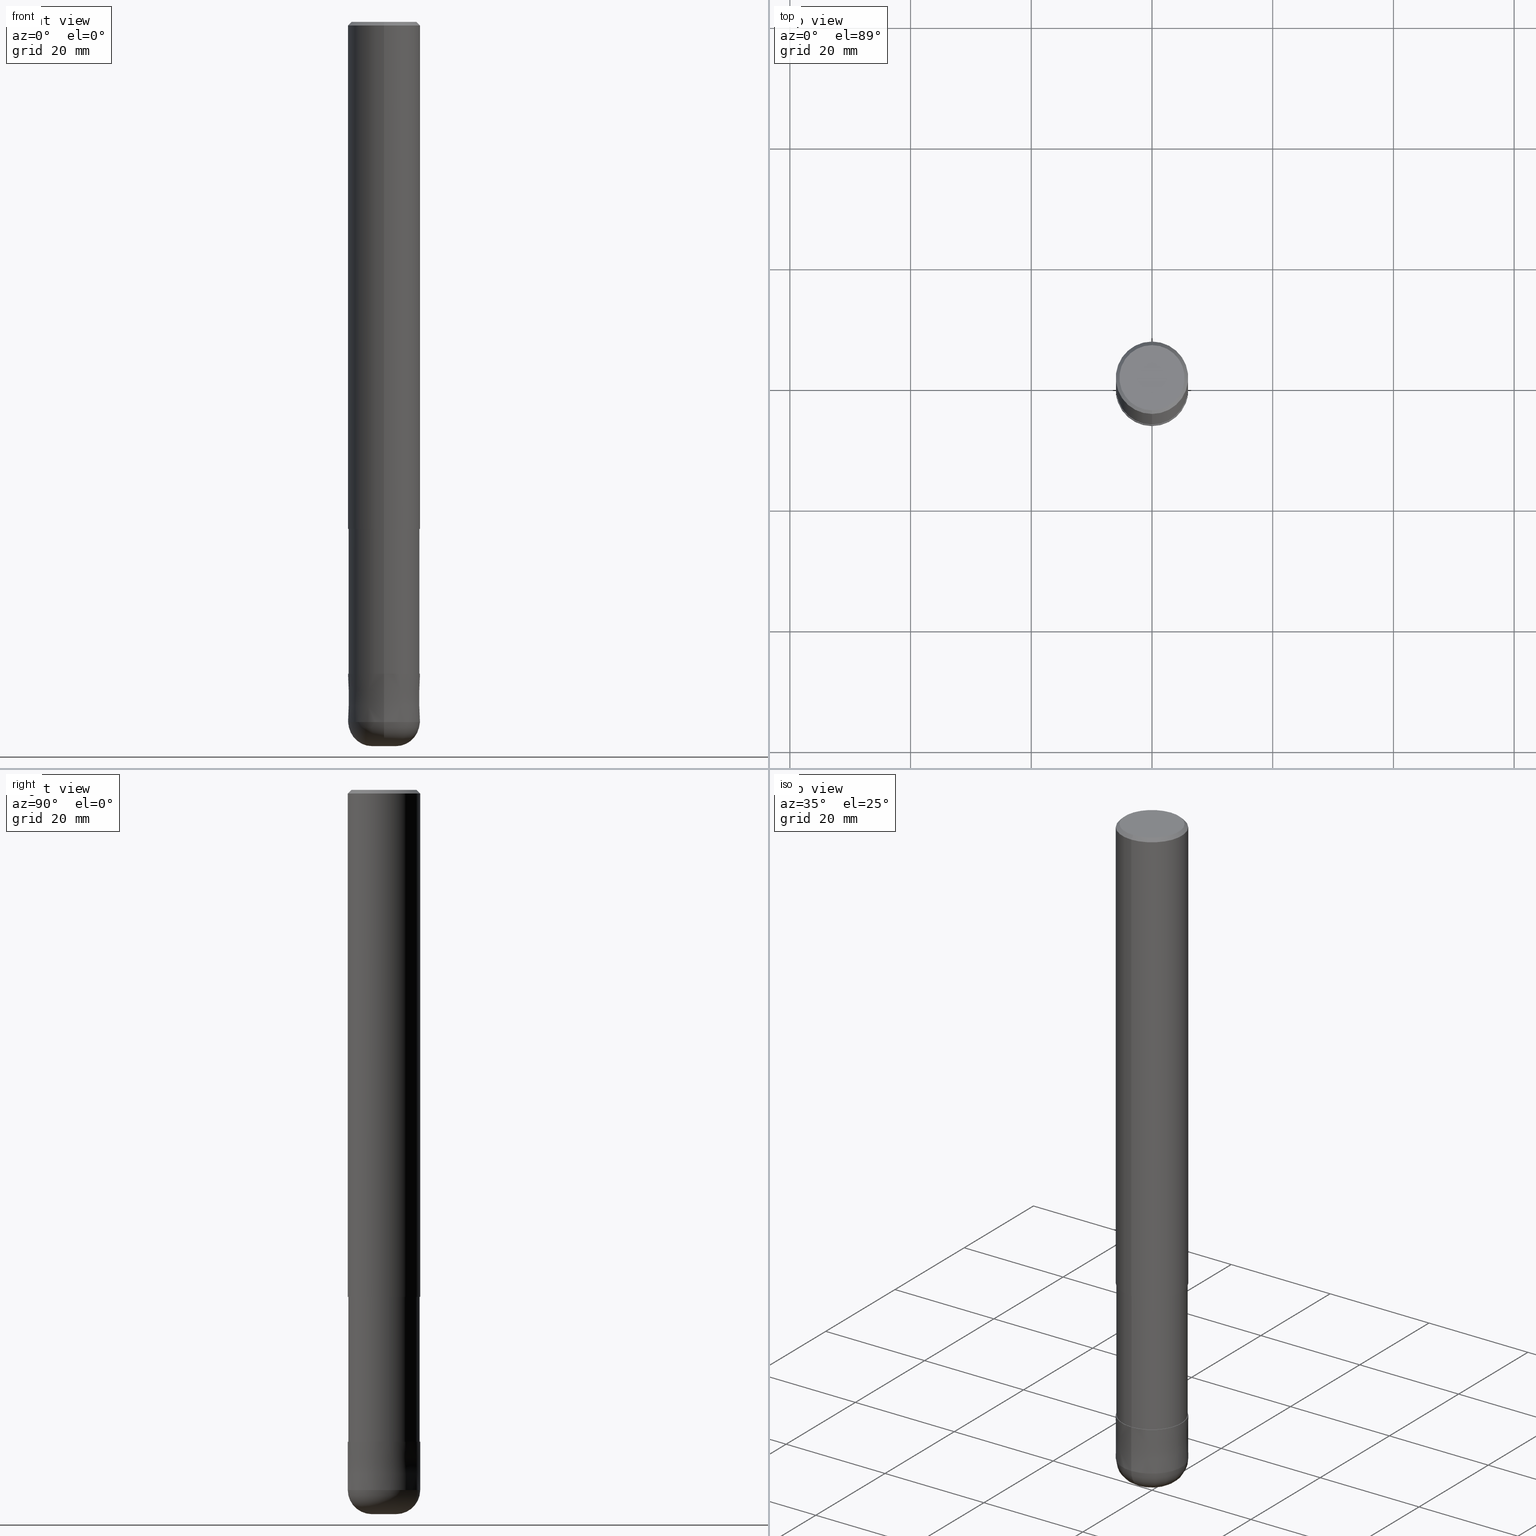
[diagram: canonical four-view strip — front | top / right | iso, engineering-drawing reading convention]
A machine part, canonical four-view strip (front | top / right | iso — engineering-drawing reading convention). The complete STEP part file that produces these views, byte-faithful:
ISO-10303-21;
HEADER;
FILE_DESCRIPTION(('no description'),'unknown implementation level');
FILE_NAME('HRRS4120-40-36-Huellk.stp','  ',('CIMSOURCE GmbH'),('CADClick - KiM GmbH - www.kimweb.de'),'unknown preprocess','ACIS','unknown authorization');
FILE_SCHEMA(('automotive_design'));
ENDSEC;
DATA;
#1=MECHANICAL_DESIGN_GEOMETRIC_PRESENTATION_REPRESENTATION(' ',(#14,#15,#16,#17,#18,#19,#20,#21,#22,#23,#24,#25,#26,#27,#28,#29,#30,#31,#32,#33,#34,#35,#36,#37,#38,#39,#40,#41,#42,#43,#44,#45,#46,#47,#48,#49,#50,#51,#52,#53,#54,#55,#56,#57,#58,#59,#60,#61,#62,#63,#64,#65,#66,#67,#68,#69,#70,#71,#72),#10);
#2=PRODUCT_DEFINITION_CONTEXT('',#73,'design');
#3=APPLICATION_PROTOCOL_DEFINITION('INTERNATIONAL STANDARD','automotive_design',1994,#73);
#4=PRODUCT_CATEGORY_RELATIONSHIP('NONE','NONE',#74,#75);
#5=SHAPE_DEFINITION_REPRESENTATION(#76,#77);
#6=PRODUCT_DEFINITION_CONTEXT('',#78,'design');
#7=APPLICATION_PROTOCOL_DEFINITION('INTERNATIONAL STANDARD','automotive_design',1994,#78);
#8=PRODUCT_CATEGORY_RELATIONSHIP('NONE','NONE',#79,#80);
#9=SHAPE_DEFINITION_REPRESENTATION(#81,#82);
#10= (GEOMETRIC_REPRESENTATION_CONTEXT(3)GLOBAL_UNCERTAINTY_ASSIGNED_CONTEXT((#85))GLOBAL_UNIT_ASSIGNED_CONTEXT((#87,#88,#89))REPRESENTATION_CONTEXT('NONE','WORKSPACE'));
#14=STYLED_ITEM('',(#91),#92);
#15=STYLED_ITEM('',(#93),#94);
#16=STYLED_ITEM('',(#95),#96);
#17=STYLED_ITEM('',(#97),#98);
#18=STYLED_ITEM('',(#99),#100);
#19=STYLED_ITEM('',(#101),#102);
#20=STYLED_ITEM('',(#103),#104);
#21=STYLED_ITEM('',(#105),#106);
#22=STYLED_ITEM('',(#107),#108);
#23=STYLED_ITEM('',(#109),#110);
#24=STYLED_ITEM('',(#111),#112);
#25=STYLED_ITEM('',(#113),#114);
#26=STYLED_ITEM('',(#115),#116);
#27=STYLED_ITEM('',(#117),#118);
#28=STYLED_ITEM('',(#119),#120);
#29=STYLED_ITEM('',(#121),#122);
#30=STYLED_ITEM('',(#123),#124);
#31=STYLED_ITEM('',(#125),#126);
#32=STYLED_ITEM('',(#127),#128);
#33=STYLED_ITEM('',(#129),#130);
#34=STYLED_ITEM('',(#131),#132);
#35=STYLED_ITEM('',(#133),#134);
#36=STYLED_ITEM('',(#135),#136);
#37=STYLED_ITEM('',(#137),#138);
#38=STYLED_ITEM('',(#139),#140);
#39=STYLED_ITEM('',(#141),#142);
#40=STYLED_ITEM('',(#143),#144);
#41=STYLED_ITEM('',(#145),#146);
#42=STYLED_ITEM('',(#147),#148);
#43=STYLED_ITEM('',(#149),#150);
#44=STYLED_ITEM('',(#151),#152);
#45=STYLED_ITEM('',(#153),#154);
#46=STYLED_ITEM('',(#155),#156);
#47=STYLED_ITEM('',(#157),#158);
#48=STYLED_ITEM('',(#159),#160);
#49=STYLED_ITEM('',(#161),#162);
#50=STYLED_ITEM('',(#163),#164);
#51=STYLED_ITEM('',(#165),#166);
#52=STYLED_ITEM('',(#167),#168);
#53=STYLED_ITEM('',(#169),#170);
#54=STYLED_ITEM('',(#171),#172);
#55=STYLED_ITEM('',(#173),#174);
#56=STYLED_ITEM('',(#175),#176);
#57=STYLED_ITEM('',(#177),#178);
#58=STYLED_ITEM('',(#179),#180);
#59=STYLED_ITEM('',(#181),#182);
#60=STYLED_ITEM('',(#183),#184);
#61=STYLED_ITEM('',(#185),#186);
#62=STYLED_ITEM('',(#187),#188);
#63=STYLED_ITEM('',(#189),#190);
#64=STYLED_ITEM('',(#191),#192);
#65=STYLED_ITEM('',(#193),#194);
#66=STYLED_ITEM('',(#195),#196);
#67=STYLED_ITEM('',(#197),#198);
#68=STYLED_ITEM('',(#199),#200);
#69=STYLED_ITEM('',(#201),#202);
#70=STYLED_ITEM('',(#203),#204);
#71=STYLED_ITEM('',(#205),#206);
#72=STYLED_ITEM('',(#207),#208);
#73=APPLICATION_CONTEXT(' ');
#74=PRODUCT_CATEGORY('part','NONE');
#75=PRODUCT_RELATED_PRODUCT_CATEGORY('detail',' ',(#209));
#76=PRODUCT_DEFINITION_SHAPE('NONE','NONE',#210);
#77=ADVANCED_BREP_SHAPE_REPRESENTATION('1',(#152,#211),#10);
#78=APPLICATION_CONTEXT(' ');
#79=PRODUCT_CATEGORY('part','NONE');
#80=PRODUCT_RELATED_PRODUCT_CATEGORY('detail',' ',(#212));
#81=PRODUCT_DEFINITION_SHAPE('NONE','NONE',#213);
#82=ADVANCED_BREP_SHAPE_REPRESENTATION('2',(#96,#214),#10);
#85=UNCERTAINTY_MEASURE_WITH_UNIT(LENGTH_MEASURE(1.0E-006),#87,'','');
#87= (CONVERSION_BASED_UNIT('MILLIMETRE',#217)LENGTH_UNIT()NAMED_UNIT(#220));
#88= (NAMED_UNIT(#222)PLANE_ANGLE_UNIT()SI_UNIT($,.RADIAN.));
#89= (NAMED_UNIT(#222)SOLID_ANGLE_UNIT()SI_UNIT($,.STERADIAN.));
#91=PRESENTATION_STYLE_ASSIGNMENT((#228));
#92=ADVANCED_FACE('',(#229),#230,.T.);
#93=PRESENTATION_STYLE_ASSIGNMENT((#231));
#94=EDGE_CURVE('',#144,#208,#232,.T.);
#95=PRESENTATION_STYLE_ASSIGNMENT((#233));
#96=MANIFOLD_SOLID_BREP('2',#234);
#97=PRESENTATION_STYLE_ASSIGNMENT((#235));
#98=EDGE_CURVE('',#184,#160,#236,.T.);
#99=PRESENTATION_STYLE_ASSIGNMENT((#237));
#100=VERTEX_POINT('',#238);
#101=PRESENTATION_STYLE_ASSIGNMENT((#239));
#102=VERTEX_POINT('',#240);
#103=PRESENTATION_STYLE_ASSIGNMENT((#241));
#104=ADVANCED_FACE('',(#242),#243,.T.);
#105=PRESENTATION_STYLE_ASSIGNMENT((#244));
#106=EDGE_CURVE('',#156,#108,#245,.T.);
#107=PRESENTATION_STYLE_ASSIGNMENT((#246));
#108=VERTEX_POINT('',#247);
#109=PRESENTATION_STYLE_ASSIGNMENT((#248));
#110=EDGE_CURVE('',#108,#118,#249,.T.);
#111=PRESENTATION_STYLE_ASSIGNMENT((#250));
#112=EDGE_CURVE('',#118,#134,#251,.T.);
#113=PRESENTATION_STYLE_ASSIGNMENT((#252));
#114=VERTEX_POINT('',#253);
#115=PRESENTATION_STYLE_ASSIGNMENT((#254));
#116=EDGE_CURVE('',#206,#174,#255,.T.);
#117=PRESENTATION_STYLE_ASSIGNMENT((#256));
#118=VERTEX_POINT('',#257);
#119=PRESENTATION_STYLE_ASSIGNMENT((#258));
#120=EDGE_CURVE('',#108,#156,#259,.T.);
#121=PRESENTATION_STYLE_ASSIGNMENT((#260));
#122=ADVANCED_FACE('',(#261),#262,.T.);
#123=PRESENTATION_STYLE_ASSIGNMENT((#263));
#124=EDGE_CURVE('',#100,#178,#264,.T.);
#125=PRESENTATION_STYLE_ASSIGNMENT((#265));
#126=EDGE_CURVE('',#114,#100,#266,.T.);
#127=PRESENTATION_STYLE_ASSIGNMENT((#267));
#128=ADVANCED_FACE('',(#268),#269,.T.);
#129=PRESENTATION_STYLE_ASSIGNMENT((#270));
#130=EDGE_CURVE('',#108,#160,#271,.T.);
#131=PRESENTATION_STYLE_ASSIGNMENT((#272));
#132=ADVANCED_FACE('',(#273),#274,.T.);
#133=PRESENTATION_STYLE_ASSIGNMENT((#275));
#134=VERTEX_POINT('',#276);
#135=PRESENTATION_STYLE_ASSIGNMENT((#277));
#136=EDGE_CURVE('',#184,#156,#278,.T.);
#137=PRESENTATION_STYLE_ASSIGNMENT((#279));
#138=ADVANCED_FACE('',(#280),#281,.T.);
#139=PRESENTATION_STYLE_ASSIGNMENT((#282));
#140=EDGE_CURVE('',#208,#144,#283,.T.);
#141=PRESENTATION_STYLE_ASSIGNMENT((#284));
#142=VERTEX_POINT('',#285);
#143=PRESENTATION_STYLE_ASSIGNMENT((#286));
#144=VERTEX_POINT('',#287);
#145=PRESENTATION_STYLE_ASSIGNMENT((#288));
#146=EDGE_CURVE('',#142,#178,#289,.T.);
#147=PRESENTATION_STYLE_ASSIGNMENT((#290));
#148=ADVANCED_FACE('',(#291),#292,.T.);
#149=PRESENTATION_STYLE_ASSIGNMENT((#293));
#150=EDGE_CURVE('',#206,#144,#294,.T.);
#151=PRESENTATION_STYLE_ASSIGNMENT((#295));
#152=MANIFOLD_SOLID_BREP('1',#296);
#153=PRESENTATION_STYLE_ASSIGNMENT((#297));
#154=ADVANCED_FACE('',(#298),#299,.T.);
#155=PRESENTATION_STYLE_ASSIGNMENT((#300));
#156=VERTEX_POINT('',#301);
#157=PRESENTATION_STYLE_ASSIGNMENT((#302));
#158=VERTEX_POINT('',#303);
#159=PRESENTATION_STYLE_ASSIGNMENT((#304));
#160=VERTEX_POINT('',#305);
#161=PRESENTATION_STYLE_ASSIGNMENT((#306));
#162=EDGE_CURVE('',#102,#100,#307,.T.);
#163=PRESENTATION_STYLE_ASSIGNMENT((#308));
#164=EDGE_CURVE('',#158,#114,#309,.T.);
#165=PRESENTATION_STYLE_ASSIGNMENT((#310));
#166=EDGE_CURVE('',#134,#156,#311,.T.);
#167=PRESENTATION_STYLE_ASSIGNMENT((#312));
#168=ADVANCED_FACE('',(#313),#314,.T.);
#169=PRESENTATION_STYLE_ASSIGNMENT((#315));
#170=EDGE_CURVE('',#174,#206,#316,.T.);
#171=PRESENTATION_STYLE_ASSIGNMENT((#317));
#172=ADVANCED_FACE('',(#318,#319),#320,.T.);
#173=PRESENTATION_STYLE_ASSIGNMENT((#321));
#174=VERTEX_POINT('',#322);
#175=PRESENTATION_STYLE_ASSIGNMENT((#323));
#176=ADVANCED_FACE('',(#324),#325,.T.);
#177=PRESENTATION_STYLE_ASSIGNMENT((#326));
#178=VERTEX_POINT('',#327);
#179=PRESENTATION_STYLE_ASSIGNMENT((#328));
#180=EDGE_CURVE('',#100,#102,#329,.T.);
#181=PRESENTATION_STYLE_ASSIGNMENT((#330));
#182=EDGE_CURVE('',#208,#174,#331,.T.);
#183=PRESENTATION_STYLE_ASSIGNMENT((#332));
#184=VERTEX_POINT('',#333);
#185=PRESENTATION_STYLE_ASSIGNMENT((#334));
#186=EDGE_CURVE('',#160,#184,#335,.T.);
#187=PRESENTATION_STYLE_ASSIGNMENT((#336));
#188=ADVANCED_FACE('',(#337),#338,.T.);
#189=PRESENTATION_STYLE_ASSIGNMENT((#339));
#190=ADVANCED_FACE('',(#340),#341,.T.);
#191=PRESENTATION_STYLE_ASSIGNMENT((#342));
#192=EDGE_CURVE('',#142,#102,#343,.T.);
#193=PRESENTATION_STYLE_ASSIGNMENT((#344));
#194=EDGE_CURVE('',#114,#158,#345,.T.);
#195=PRESENTATION_STYLE_ASSIGNMENT((#346));
#196=ADVANCED_FACE('',(#347),#348,.T.);
#197=PRESENTATION_STYLE_ASSIGNMENT((#349));
#198=EDGE_CURVE('',#134,#118,#350,.T.);
#199=PRESENTATION_STYLE_ASSIGNMENT((#351));
#200=EDGE_CURVE('',#178,#142,#352,.T.);
#201=PRESENTATION_STYLE_ASSIGNMENT((#353));
#202=EDGE_CURVE('',#102,#158,#354,.T.);
#203=PRESENTATION_STYLE_ASSIGNMENT((#355));
#204=ADVANCED_FACE('',(#356),#357,.T.);
#205=PRESENTATION_STYLE_ASSIGNMENT((#358));
#206=VERTEX_POINT('',#359);
#207=PRESENTATION_STYLE_ASSIGNMENT((#360));
#208=VERTEX_POINT('',#361);
#209=PRODUCT('1','1','PART-1-DESC',(#362));
#210=PRODUCT_DEFINITION('NONE','NONE',#363,#2);
#211=AXIS2_PLACEMENT_3D('',#364,#365,#366);
#212=PRODUCT('2','2','PART-2-DESC',(#367));
#213=PRODUCT_DEFINITION('NONE','NONE',#368,#6);
#214=AXIS2_PLACEMENT_3D('',#369,#370,#371);
#217=LENGTH_MEASURE_WITH_UNIT(LENGTH_MEASURE(1.0),#372);
#220=DIMENSIONAL_EXPONENTS(1.0,0.0,0.0,0.0,0.0,0.0,0.0);
#222=DIMENSIONAL_EXPONENTS(0.0,0.0,0.0,0.0,0.0,0.0,0.0);
#228=SURFACE_STYLE_USAGE(.BOTH.,#373);
#229=FACE_OUTER_BOUND('',#374,.T.);
#230=PLANE('',#375);
#231=CURVE_STYLE('',#376,POSITIVE_LENGTH_MEASURE(1.0E-006),#377);
#232=CIRCLE('',#378,5.90995);
#233=SURFACE_STYLE_USAGE(.BOTH.,#379);
#234=CLOSED_SHELL('',(#132,#188,#190,#104,#176,#204));
#235=CURVE_STYLE('',#380,POSITIVE_LENGTH_MEASURE(1.0E-006),#381);
#236=CIRCLE('',#382,2.0);
#237=POINT_STYLE(' ',#383,POSITIVE_LENGTH_MEASURE(1.0E-006),#384);
#238=CARTESIAN_POINT('',(0.0,6.0,-0.599999999999994));
#239=POINT_STYLE(' ',#385,POSITIVE_LENGTH_MEASURE(1.0E-006),#386);
#240=CARTESIAN_POINT('',(7.34763812293426E-016,-6.0,-0.599999999999994));
#241=SURFACE_STYLE_USAGE(.BOTH.,#387);
#242=FACE_OUTER_BOUND('',#388,.T.);
#243=CONICAL_SURFACE('',#389,5.99995,1.24999999993198E-005);
#244=CURVE_STYLE('',#390,POSITIVE_LENGTH_MEASURE(1.0E-006),#391);
#245=CIRCLE('',#392,6.0);
#246=POINT_STYLE(' ',#393,POSITIVE_LENGTH_MEASURE(1.0E-006),#394);
#247=CARTESIAN_POINT('',(7.34763812293427E-016,-6.0,-116.0));
#248=CURVE_STYLE('',#395,POSITIVE_LENGTH_MEASURE(1.0E-006),#396);
#249=LINE('',#397,#398);
#250=CURVE_STYLE('',#399,POSITIVE_LENGTH_MEASURE(1.0E-006),#400);
#251=CIRCLE('',#401,5.9999);
#252=POINT_STYLE(' ',#402,POSITIVE_LENGTH_MEASURE(1.0E-006),#403);
#253=CARTESIAN_POINT('',(0.0,5.4,0.0));
#254=CURVE_STYLE('',#404,POSITIVE_LENGTH_MEASURE(1.0E-006),#405);
#255=CIRCLE('',#406,5.90995);
#256=POINT_STYLE(' ',#407,POSITIVE_LENGTH_MEASURE(1.0E-006),#408);
#257=CARTESIAN_POINT('',(7.34751566229888E-016,-5.9999,-108.0));
#258=CURVE_STYLE('',#409,POSITIVE_LENGTH_MEASURE(1.0E-006),#410);
#259=CIRCLE('',#411,6.0);
#260=SURFACE_STYLE_USAGE(.BOTH.,#412);
#261=FACE_OUTER_BOUND('',#413,.T.);
#262=CYLINDRICAL_SURFACE('',#414,6.0);
#263=CURVE_STYLE('',#415,POSITIVE_LENGTH_MEASURE(1.0E-006),#416);
#264=LINE('',#417,#418);
#265=CURVE_STYLE('',#419,POSITIVE_LENGTH_MEASURE(1.0E-006),#420);
#266=LINE('',#421,#422);
#267=SURFACE_STYLE_USAGE(.BOTH.,#423);
#268=FACE_OUTER_BOUND('',#424,.T.);
#269=CYLINDRICAL_SURFACE('',#425,6.0);
#270=CURVE_STYLE('',#426,POSITIVE_LENGTH_MEASURE(1.0E-006),#427);
#271=CIRCLE('',#428,4.0);
#272=SURFACE_STYLE_USAGE(.BOTH.,#429);
#273=FACE_OUTER_BOUND('',#430,.T.);
#274=TOROIDAL_SURFACE('',#431,2.0,4.0);
#275=POINT_STYLE(' ',#432,POSITIVE_LENGTH_MEASURE(1.0E-006),#433);
#276=CARTESIAN_POINT('',(0.0,5.9999,-108.0));
#277=CURVE_STYLE('',#434,POSITIVE_LENGTH_MEASURE(1.0E-006),#435);
#278=CIRCLE('',#436,4.0);
#279=SURFACE_STYLE_USAGE(.BOTH.,#437);
#280=FACE_OUTER_BOUND('',#438,.T.);
#281=CONICAL_SURFACE('',#439,5.7,0.785398163397453);
#282=CURVE_STYLE('',#440,POSITIVE_LENGTH_MEASURE(1.0E-006),#441);
#283=CIRCLE('',#442,5.90995);
#284=POINT_STYLE(' ',#443,POSITIVE_LENGTH_MEASURE(1.0E-006),#444);
#285=CARTESIAN_POINT('',(7.34763812293426E-016,-6.0,-84.0));
#286=POINT_STYLE(' ',#445,POSITIVE_LENGTH_MEASURE(1.0E-006),#446);
#287=CARTESIAN_POINT('',(7.23736232077256E-016,-5.90995,-84.0));
#288=CURVE_STYLE('',#447,POSITIVE_LENGTH_MEASURE(1.0E-006),#448);
#289=CIRCLE('',#449,6.0);
#290=SURFACE_STYLE_USAGE(.BOTH.,#450);
#291=FACE_OUTER_BOUND('',#451,.T.);
#292=CONICAL_SURFACE('',#452,5.7,0.785398163397453);
#293=CURVE_STYLE('',#453,POSITIVE_LENGTH_MEASURE(1.0E-006),#454);
#294=LINE('',#455,#456);
#295=SURFACE_STYLE_USAGE(.BOTH.,#457);
#296=CLOSED_SHELL('',(#168,#122,#148,#172,#92,#138,#128,#196,#154));
#297=SURFACE_STYLE_USAGE(.BOTH.,#458);
#298=FACE_OUTER_BOUND('',#459,.T.);
#299=PLANE('',#460);
#300=POINT_STYLE(' ',#461,POSITIVE_LENGTH_MEASURE(1.0E-006),#462);
#301=CARTESIAN_POINT('',(0.0,6.0,-116.0));
#302=POINT_STYLE(' ',#463,POSITIVE_LENGTH_MEASURE(1.0E-006),#464);
#303=CARTESIAN_POINT('',(6.61287431064084E-016,-5.4,0.0));
#304=POINT_STYLE(' ',#465,POSITIVE_LENGTH_MEASURE(1.0E-006),#466);
#305=CARTESIAN_POINT('',(2.44921270764476E-016,-2.0,-120.0));
#306=CURVE_STYLE('',#467,POSITIVE_LENGTH_MEASURE(1.0E-006),#468);
#307=CIRCLE('',#469,6.0);
#308=CURVE_STYLE('',#470,POSITIVE_LENGTH_MEASURE(1.0E-006),#471);
#309=CIRCLE('',#472,5.4);
#310=CURVE_STYLE('',#473,POSITIVE_LENGTH_MEASURE(1.0E-006),#474);
#311=LINE('',#475,#476);
#312=SURFACE_STYLE_USAGE(.BOTH.,#477);
#313=FACE_OUTER_BOUND('',#478,.T.);
#314=CYLINDRICAL_SURFACE('',#479,5.90995);
#315=CURVE_STYLE('',#480,POSITIVE_LENGTH_MEASURE(1.0E-006),#481);
#316=CIRCLE('',#482,5.90995);
#317=SURFACE_STYLE_USAGE(.BOTH.,#483);
#318=FACE_OUTER_BOUND('',#484,.T.);
#319=FACE_BOUND('',#485,.T.);
#320=PLANE('',#486);
#321=POINT_STYLE(' ',#487,POSITIVE_LENGTH_MEASURE(1.0E-006),#488);
#322=CARTESIAN_POINT('',(0.0,5.90995,-108.0));
#323=SURFACE_STYLE_USAGE(.BOTH.,#489);
#324=FACE_OUTER_BOUND('',#490,.T.);
#325=TOROIDAL_SURFACE('',#491,2.0,4.0);
#326=POINT_STYLE(' ',#492,POSITIVE_LENGTH_MEASURE(1.0E-006),#493);
#327=CARTESIAN_POINT('',(0.0,6.0,-84.0));
#328=CURVE_STYLE('',#494,POSITIVE_LENGTH_MEASURE(1.0E-006),#495);
#329=CIRCLE('',#496,6.0);
#330=CURVE_STYLE('',#497,POSITIVE_LENGTH_MEASURE(1.0E-006),#498);
#331=LINE('',#499,#500);
#332=POINT_STYLE(' ',#501,POSITIVE_LENGTH_MEASURE(1.0E-006),#502);
#333=CARTESIAN_POINT('',(0.0,2.0,-120.0));
#334=CURVE_STYLE('',#503,POSITIVE_LENGTH_MEASURE(1.0E-006),#504);
#335=CIRCLE('',#505,2.0);
#336=SURFACE_STYLE_USAGE(.BOTH.,#506);
#337=FACE_OUTER_BOUND('',#507,.T.);
#338=CONICAL_SURFACE('',#508,5.99995,1.24999999993198E-005);
#339=SURFACE_STYLE_USAGE(.BOTH.,#509);
#340=FACE_OUTER_BOUND('',#510,.T.);
#341=PLANE('',#511);
#342=CURVE_STYLE('',#512,POSITIVE_LENGTH_MEASURE(1.0E-006),#513);
#343=LINE('',#514,#515);
#344=CURVE_STYLE('',#516,POSITIVE_LENGTH_MEASURE(1.0E-006),#517);
#345=CIRCLE('',#518,5.4);
#346=SURFACE_STYLE_USAGE(.BOTH.,#519);
#347=FACE_OUTER_BOUND('',#520,.T.);
#348=CYLINDRICAL_SURFACE('',#521,5.90995);
#349=CURVE_STYLE('',#522,POSITIVE_LENGTH_MEASURE(1.0E-006),#523);
#350=CIRCLE('',#524,5.9999);
#351=CURVE_STYLE('',#525,POSITIVE_LENGTH_MEASURE(1.0E-006),#526);
#352=CIRCLE('',#527,6.0);
#353=CURVE_STYLE('',#528,POSITIVE_LENGTH_MEASURE(1.0E-006),#529);
#354=LINE('',#530,#531);
#355=SURFACE_STYLE_USAGE(.BOTH.,#532);
#356=FACE_OUTER_BOUND('',#533,.T.);
#357=PLANE('',#534);
#358=POINT_STYLE(' ',#535,POSITIVE_LENGTH_MEASURE(1.0E-006),#536);
#359=CARTESIAN_POINT('',(7.23736232077256E-016,-5.90995,-108.0));
#360=POINT_STYLE(' ',#537,POSITIVE_LENGTH_MEASURE(1.0E-006),#538);
#361=CARTESIAN_POINT('',(0.0,5.90995,-84.0));
#362=PRODUCT_CONTEXT('',#73,'mechanical');
#363=PRODUCT_DEFINITION_FORMATION_WITH_SPECIFIED_SOURCE(' ','NONE',#209,.NOT_KNOWN.);
#364=CARTESIAN_POINT('',(0.0,0.0,0.0));
#365=DIRECTION('',(0.0,0.0,1.0));
#366=DIRECTION('',(1.0,0.0,0.0));
#367=PRODUCT_CONTEXT('',#78,'mechanical');
#368=PRODUCT_DEFINITION_FORMATION_WITH_SPECIFIED_SOURCE(' ','NONE',#212,.NOT_KNOWN.);
#369=CARTESIAN_POINT('',(0.0,0.0,0.0));
#370=DIRECTION('',(0.0,0.0,1.0));
#371=DIRECTION('',(1.0,0.0,0.0));
#372= (NAMED_UNIT(#220)LENGTH_UNIT()SI_UNIT(.MILLI.,.METRE.));
#373=SURFACE_SIDE_STYLE('',(#540));
#374=EDGE_LOOP('',(#541,#542));
#375=AXIS2_PLACEMENT_3D('',#543,#544,#545);
#376=DRAUGHTING_PRE_DEFINED_CURVE_FONT('continuous');
#377=COLOUR_RGB('',0.498039215803146,0.498039215803146,0.498039215803146);
#378=AXIS2_PLACEMENT_3D('',#546,#547,#548);
#379=SURFACE_SIDE_STYLE('',(#549));
#380=DRAUGHTING_PRE_DEFINED_CURVE_FONT('continuous');
#381=COLOUR_RGB('',0.800000011920929,0.800000011920929,0.800000011920929);
#382=AXIS2_PLACEMENT_3D('',#550,#551,#552);
#383=PRE_DEFINED_MARKER('');
#384=COLOUR_RGB('',0.498039215803146,0.498039215803146,0.498039215803146);
#385=PRE_DEFINED_MARKER('');
#386=COLOUR_RGB('',0.498039215803146,0.498039215803146,0.498039215803146);
#387=SURFACE_SIDE_STYLE('',(#553));
#388=EDGE_LOOP('',(#554,#555,#556,#557));
#389=AXIS2_PLACEMENT_3D('',#558,#559,#560);
#390=DRAUGHTING_PRE_DEFINED_CURVE_FONT('continuous');
#391=COLOUR_RGB('',0.800000011920929,0.800000011920929,0.800000011920929);
#392=AXIS2_PLACEMENT_3D('',#561,#562,#563);
#393=PRE_DEFINED_MARKER('');
#394=COLOUR_RGB('',0.800000011920929,0.800000011920929,0.800000011920929);
#395=DRAUGHTING_PRE_DEFINED_CURVE_FONT('continuous');
#396=COLOUR_RGB('',0.800000011920929,0.800000011920929,0.800000011920929);
#397=CARTESIAN_POINT('',(7.34757689261657E-016,-5.99995,-112.0));
#398=VECTOR('',#564,1.0);
#399=DRAUGHTING_PRE_DEFINED_CURVE_FONT('continuous');
#400=COLOUR_RGB('',0.800000011920929,0.800000011920929,0.800000011920929);
#401=AXIS2_PLACEMENT_3D('',#565,#566,#567);
#402=PRE_DEFINED_MARKER('');
#403=COLOUR_RGB('',0.498039215803146,0.498039215803146,0.498039215803146);
#404=DRAUGHTING_PRE_DEFINED_CURVE_FONT('continuous');
#405=COLOUR_RGB('',0.498039215803146,0.498039215803146,0.498039215803146);
#406=AXIS2_PLACEMENT_3D('',#568,#569,#570);
#407=PRE_DEFINED_MARKER('');
#408=COLOUR_RGB('',0.800000011920929,0.800000011920929,0.800000011920929);
#409=DRAUGHTING_PRE_DEFINED_CURVE_FONT('continuous');
#410=COLOUR_RGB('',0.800000011920929,0.800000011920929,0.800000011920929);
#411=AXIS2_PLACEMENT_3D('',#571,#572,#573);
#412=SURFACE_SIDE_STYLE('',(#574));
#413=EDGE_LOOP('',(#575,#576,#577,#578));
#414=AXIS2_PLACEMENT_3D('',#579,#580,#581);
#415=DRAUGHTING_PRE_DEFINED_CURVE_FONT('continuous');
#416=COLOUR_RGB('',0.498039215803146,0.498039215803146,0.498039215803146);
#417=CARTESIAN_POINT('',(-7.34763812293426E-016,6.0,-42.3));
#418=VECTOR('',#582,1.0);
#419=DRAUGHTING_PRE_DEFINED_CURVE_FONT('continuous');
#420=COLOUR_RGB('',0.498039215803146,0.498039215803146,0.498039215803146);
#421=CARTESIAN_POINT('',(-6.98025621678755E-016,5.7,-0.299999999999997));
#422=VECTOR('',#583,1.0);
#423=SURFACE_SIDE_STYLE('',(#584));
#424=EDGE_LOOP('',(#585,#586,#587,#588));
#425=AXIS2_PLACEMENT_3D('',#589,#590,#591);
#426=DRAUGHTING_PRE_DEFINED_CURVE_FONT('continuous');
#427=COLOUR_RGB('',0.800000011920929,0.800000011920929,0.800000011920929);
#428=AXIS2_PLACEMENT_3D('',#592,#593,#594);
#429=SURFACE_SIDE_STYLE('',(#595));
#430=EDGE_LOOP('',(#596,#597,#598,#599));
#431=AXIS2_PLACEMENT_3D('',#600,#601,#602);
#432=PRE_DEFINED_MARKER('');
#433=COLOUR_RGB('',0.800000011920929,0.800000011920929,0.800000011920929);
#434=DRAUGHTING_PRE_DEFINED_CURVE_FONT('continuous');
#435=COLOUR_RGB('',0.800000011920929,0.800000011920929,0.800000011920929);
#436=AXIS2_PLACEMENT_3D('',#603,#604,#605);
#437=SURFACE_SIDE_STYLE('',(#606));
#438=EDGE_LOOP('',(#607,#608,#609,#610));
#439=AXIS2_PLACEMENT_3D('',#611,#612,#613);
#440=DRAUGHTING_PRE_DEFINED_CURVE_FONT('continuous');
#441=COLOUR_RGB('',0.498039215803146,0.498039215803146,0.498039215803146);
#442=AXIS2_PLACEMENT_3D('',#614,#615,#616);
#443=PRE_DEFINED_MARKER('');
#444=COLOUR_RGB('',0.498039215803146,0.498039215803146,0.498039215803146);
#445=PRE_DEFINED_MARKER('');
#446=COLOUR_RGB('',0.498039215803146,0.498039215803146,0.498039215803146);
#447=DRAUGHTING_PRE_DEFINED_CURVE_FONT('continuous');
#448=COLOUR_RGB('',0.498039215803146,0.498039215803146,0.498039215803146);
#449=AXIS2_PLACEMENT_3D('',#617,#618,#619);
#450=SURFACE_SIDE_STYLE('',(#620));
#451=EDGE_LOOP('',(#621,#622,#623,#624));
#452=AXIS2_PLACEMENT_3D('',#625,#626,#627);
#453=DRAUGHTING_PRE_DEFINED_CURVE_FONT('continuous');
#454=COLOUR_RGB('',0.498039215803146,0.498039215803146,0.498039215803146);
#455=CARTESIAN_POINT('',(7.23736232077256E-016,-5.90995,-96.0));
#456=VECTOR('',#628,1.0);
#457=SURFACE_SIDE_STYLE('',(#629));
#458=SURFACE_SIDE_STYLE('',(#630));
#459=EDGE_LOOP('',(#631,#632));
#460=AXIS2_PLACEMENT_3D('',#633,#634,#635);
#461=PRE_DEFINED_MARKER('');
#462=COLOUR_RGB('',0.800000011920929,0.800000011920929,0.800000011920929);
#463=PRE_DEFINED_MARKER('');
#464=COLOUR_RGB('',0.498039215803146,0.498039215803146,0.498039215803146);
#465=PRE_DEFINED_MARKER('');
#466=COLOUR_RGB('',0.800000011920929,0.800000011920929,0.800000011920929);
#467=DRAUGHTING_PRE_DEFINED_CURVE_FONT('continuous');
#468=COLOUR_RGB('',0.498039215803146,0.498039215803146,0.498039215803146);
#469=AXIS2_PLACEMENT_3D('',#636,#637,#638);
#470=DRAUGHTING_PRE_DEFINED_CURVE_FONT('continuous');
#471=COLOUR_RGB('',0.498039215803146,0.498039215803146,0.498039215803146);
#472=AXIS2_PLACEMENT_3D('',#639,#640,#641);
#473=DRAUGHTING_PRE_DEFINED_CURVE_FONT('continuous');
#474=COLOUR_RGB('',0.800000011920929,0.800000011920929,0.800000011920929);
#475=CARTESIAN_POINT('',(-7.34757689261657E-016,5.99995,-112.0));
#476=VECTOR('',#642,1.0);
#477=SURFACE_SIDE_STYLE('',(#643));
#478=EDGE_LOOP('',(#644,#645,#646,#647));
#479=AXIS2_PLACEMENT_3D('',#648,#649,#650);
#480=DRAUGHTING_PRE_DEFINED_CURVE_FONT('continuous');
#481=COLOUR_RGB('',0.498039215803146,0.498039215803146,0.498039215803146);
#482=AXIS2_PLACEMENT_3D('',#651,#652,#653);
#483=SURFACE_SIDE_STYLE('',(#654));
#484=EDGE_LOOP('',(#655,#656));
#485=EDGE_LOOP('',(#657,#658));
#486=AXIS2_PLACEMENT_3D('',#659,#660,#661);
#487=PRE_DEFINED_MARKER('');
#488=COLOUR_RGB('',0.498039215803146,0.498039215803146,0.498039215803146);
#489=SURFACE_SIDE_STYLE('',(#662));
#490=EDGE_LOOP('',(#663,#664,#665,#666));
#491=AXIS2_PLACEMENT_3D('',#667,#668,#669);
#492=PRE_DEFINED_MARKER('');
#493=COLOUR_RGB('',0.498039215803146,0.498039215803146,0.498039215803146);
#494=DRAUGHTING_PRE_DEFINED_CURVE_FONT('continuous');
#495=COLOUR_RGB('',0.498039215803146,0.498039215803146,0.498039215803146);
#496=AXIS2_PLACEMENT_3D('',#670,#671,#672);
#497=DRAUGHTING_PRE_DEFINED_CURVE_FONT('continuous');
#498=COLOUR_RGB('',0.498039215803146,0.498039215803146,0.498039215803146);
#499=CARTESIAN_POINT('',(-7.23736232077256E-016,5.90995,-96.0));
#500=VECTOR('',#673,1.0);
#501=PRE_DEFINED_MARKER('');
#502=COLOUR_RGB('',0.800000011920929,0.800000011920929,0.800000011920929);
#503=DRAUGHTING_PRE_DEFINED_CURVE_FONT('continuous');
#504=COLOUR_RGB('',0.800000011920929,0.800000011920929,0.800000011920929);
#505=AXIS2_PLACEMENT_3D('',#674,#675,#676);
#506=SURFACE_SIDE_STYLE('',(#677));
#507=EDGE_LOOP('',(#678,#679,#680,#681));
#508=AXIS2_PLACEMENT_3D('',#682,#683,#684);
#509=SURFACE_SIDE_STYLE('',(#685));
#510=EDGE_LOOP('',(#686,#687));
#511=AXIS2_PLACEMENT_3D('',#688,#689,#690);
#512=DRAUGHTING_PRE_DEFINED_CURVE_FONT('continuous');
#513=COLOUR_RGB('',0.498039215803146,0.498039215803146,0.498039215803146);
#514=CARTESIAN_POINT('',(7.34763812293426E-016,-6.0,-42.3));
#515=VECTOR('',#691,1.0);
#516=DRAUGHTING_PRE_DEFINED_CURVE_FONT('continuous');
#517=COLOUR_RGB('',0.498039215803146,0.498039215803146,0.498039215803146);
#518=AXIS2_PLACEMENT_3D('',#692,#693,#694);
#519=SURFACE_SIDE_STYLE('',(#695));
#520=EDGE_LOOP('',(#696,#697,#698,#699));
#521=AXIS2_PLACEMENT_3D('',#700,#701,#702);
#522=DRAUGHTING_PRE_DEFINED_CURVE_FONT('continuous');
#523=COLOUR_RGB('',0.800000011920929,0.800000011920929,0.800000011920929);
#524=AXIS2_PLACEMENT_3D('',#703,#704,#705);
#525=DRAUGHTING_PRE_DEFINED_CURVE_FONT('continuous');
#526=COLOUR_RGB('',0.498039215803146,0.498039215803146,0.498039215803146);
#527=AXIS2_PLACEMENT_3D('',#706,#707,#708);
#528=DRAUGHTING_PRE_DEFINED_CURVE_FONT('continuous');
#529=COLOUR_RGB('',0.498039215803146,0.498039215803146,0.498039215803146);
#530=CARTESIAN_POINT('',(6.98025621678755E-016,-5.7,-0.299999999999997));
#531=VECTOR('',#709,1.0);
#532=SURFACE_SIDE_STYLE('',(#710));
#533=EDGE_LOOP('',(#711,#712));
#534=AXIS2_PLACEMENT_3D('',#713,#714,#715);
#535=PRE_DEFINED_MARKER('');
#536=COLOUR_RGB('',0.498039215803146,0.498039215803146,0.498039215803146);
#537=PRE_DEFINED_MARKER('');
#538=COLOUR_RGB('',0.498039215803146,0.498039215803146,0.498039215803146);
#540=SURFACE_STYLE_FILL_AREA(#716);
#541=ORIENTED_EDGE('',*,*,#194,.F.);
#542=ORIENTED_EDGE('',*,*,#164,.F.);
#543=CARTESIAN_POINT('',(0.0,2.7,0.0));
#544=DIRECTION('',(-0.0,0.0,1.0));
#545=DIRECTION('',(0.0,-1.0,0.0));
#546=CARTESIAN_POINT('',(0.0,0.0,-84.0));
#547=DIRECTION('',(0.0,0.0,-1.0));
#548=DIRECTION('',(0.0,1.0,0.0));
#549=SURFACE_STYLE_FILL_AREA(#717);
#550=CARTESIAN_POINT('',(0.0,0.0,-120.0));
#551=DIRECTION('',(0.0,0.0,-1.0));
#552=DIRECTION('',(0.0,1.0,0.0));
#553=SURFACE_STYLE_FILL_AREA(#718);
#554=ORIENTED_EDGE('',*,*,#166,.T.);
#555=ORIENTED_EDGE('',*,*,#120,.F.);
#556=ORIENTED_EDGE('',*,*,#110,.T.);
#557=ORIENTED_EDGE('',*,*,#112,.T.);
#558=CARTESIAN_POINT('',(0.0,0.0,-112.0));
#559=DIRECTION('',(0.0,-0.0,-1.0));
#560=DIRECTION('',(0.0,1.0,0.0));
#561=CARTESIAN_POINT('',(0.0,0.0,-116.0));
#562=DIRECTION('',(0.0,0.0,-1.0));
#563=DIRECTION('',(0.0,1.0,0.0));
#564=DIRECTION('',(-1.53075794215481E-021,1.24999999989943E-005,0.999999999921875));
#565=CARTESIAN_POINT('',(0.0,0.0,-108.0));
#566=DIRECTION('',(0.0,0.0,-1.0));
#567=DIRECTION('',(0.0,1.0,0.0));
#568=CARTESIAN_POINT('',(0.0,0.0,-108.0));
#569=DIRECTION('',(0.0,0.0,-1.0));
#570=DIRECTION('',(0.0,1.0,0.0));
#571=CARTESIAN_POINT('',(0.0,0.0,-116.0));
#572=DIRECTION('',(0.0,0.0,-1.0));
#573=DIRECTION('',(0.0,1.0,0.0));
#574=SURFACE_STYLE_FILL_AREA(#719);
#575=ORIENTED_EDGE('',*,*,#124,.F.);
#576=ORIENTED_EDGE('',*,*,#180,.T.);
#577=ORIENTED_EDGE('',*,*,#192,.F.);
#578=ORIENTED_EDGE('',*,*,#200,.F.);
#579=CARTESIAN_POINT('',(0.0,0.0,-42.3));
#580=DIRECTION('',(-0.0,-0.0,1.0));
#581=DIRECTION('',(0.0,1.0,0.0));
#582=DIRECTION('',(0.0,0.0,-1.0));
#583=DIRECTION('',(-8.65927457071939E-017,0.707106781186551,-0.707106781186544));
#584=SURFACE_STYLE_FILL_AREA(#720);
#585=ORIENTED_EDGE('',*,*,#124,.T.);
#586=ORIENTED_EDGE('',*,*,#146,.F.);
#587=ORIENTED_EDGE('',*,*,#192,.T.);
#588=ORIENTED_EDGE('',*,*,#162,.T.);
#589=CARTESIAN_POINT('',(0.0,0.0,-42.3));
#590=DIRECTION('',(-0.0,-0.0,1.0));
#591=DIRECTION('',(0.0,1.0,0.0));
#592=CARTESIAN_POINT('',(2.44921270764475E-016,-2.0,-116.0));
#593=DIRECTION('',(1.0,1.22460635382238E-016,0.0));
#594=DIRECTION('',(1.22460635382238E-016,-1.0,-0.0));
#595=SURFACE_STYLE_FILL_AREA(#721);
#596=ORIENTED_EDGE('',*,*,#130,.F.);
#597=ORIENTED_EDGE('',*,*,#120,.T.);
#598=ORIENTED_EDGE('',*,*,#136,.F.);
#599=ORIENTED_EDGE('',*,*,#186,.F.);
#600=CARTESIAN_POINT('',(0.0,0.0,-116.0));
#601=DIRECTION('',(0.0,0.0,-1.0));
#602=DIRECTION('',(0.0,-1.0,0.0));
#603=CARTESIAN_POINT('',(-2.44921270764475E-016,2.0,-116.0));
#604=DIRECTION('',(1.0,1.22460635382238E-016,0.0));
#605=DIRECTION('',(-1.22460635382238E-016,1.0,0.0));
#606=SURFACE_STYLE_FILL_AREA(#722);
#607=ORIENTED_EDGE('',*,*,#126,.T.);
#608=ORIENTED_EDGE('',*,*,#162,.F.);
#609=ORIENTED_EDGE('',*,*,#202,.T.);
#610=ORIENTED_EDGE('',*,*,#164,.T.);
#611=CARTESIAN_POINT('',(0.0,0.0,-0.299999999999997));
#612=DIRECTION('',(0.0,-0.0,-1.0));
#613=DIRECTION('',(0.0,1.0,0.0));
#614=CARTESIAN_POINT('',(0.0,0.0,-84.0));
#615=DIRECTION('',(0.0,0.0,-1.0));
#616=DIRECTION('',(0.0,1.0,0.0));
#617=CARTESIAN_POINT('',(0.0,0.0,-84.0));
#618=DIRECTION('',(0.0,0.0,-1.0));
#619=DIRECTION('',(0.0,1.0,0.0));
#620=SURFACE_STYLE_FILL_AREA(#723);
#621=ORIENTED_EDGE('',*,*,#126,.F.);
#622=ORIENTED_EDGE('',*,*,#194,.T.);
#623=ORIENTED_EDGE('',*,*,#202,.F.);
#624=ORIENTED_EDGE('',*,*,#180,.F.);
#625=CARTESIAN_POINT('',(0.0,0.0,-0.299999999999997));
#626=DIRECTION('',(0.0,-0.0,-1.0));
#627=DIRECTION('',(0.0,1.0,0.0));
#628=DIRECTION('',(-0.0,-0.0,1.0));
#629=SURFACE_STYLE_FILL_AREA(#724);
#630=SURFACE_STYLE_FILL_AREA(#725);
#631=ORIENTED_EDGE('',*,*,#170,.T.);
#632=ORIENTED_EDGE('',*,*,#116,.T.);
#633=CARTESIAN_POINT('',(0.0,2.954975,-108.0));
#634=DIRECTION('',(0.0,0.0,-1.0));
#635=DIRECTION('',(0.0,1.0,0.0));
#636=CARTESIAN_POINT('',(0.0,0.0,-0.599999999999994));
#637=DIRECTION('',(0.0,0.0,-1.0));
#638=DIRECTION('',(0.0,1.0,0.0));
#639=CARTESIAN_POINT('',(0.0,0.0,0.0));
#640=DIRECTION('',(0.0,0.0,-1.0));
#641=DIRECTION('',(0.0,1.0,0.0));
#642=DIRECTION('',(-1.53075794215481E-021,1.24999999989943E-005,-0.999999999921875));
#643=SURFACE_STYLE_FILL_AREA(#726);
#644=ORIENTED_EDGE('',*,*,#182,.F.);
#645=ORIENTED_EDGE('',*,*,#140,.T.);
#646=ORIENTED_EDGE('',*,*,#150,.F.);
#647=ORIENTED_EDGE('',*,*,#170,.F.);
#648=CARTESIAN_POINT('',(0.0,0.0,-96.0));
#649=DIRECTION('',(-0.0,-0.0,1.0));
#650=DIRECTION('',(0.0,1.0,0.0));
#651=CARTESIAN_POINT('',(0.0,0.0,-108.0));
#652=DIRECTION('',(0.0,0.0,-1.0));
#653=DIRECTION('',(0.0,1.0,0.0));
#654=SURFACE_STYLE_FILL_AREA(#727);
#655=ORIENTED_EDGE('',*,*,#200,.T.);
#656=ORIENTED_EDGE('',*,*,#146,.T.);
#657=ORIENTED_EDGE('',*,*,#140,.F.);
#658=ORIENTED_EDGE('',*,*,#94,.F.);
#659=CARTESIAN_POINT('',(0.0,3.0,-84.0));
#660=DIRECTION('',(0.0,0.0,-1.0));
#661=DIRECTION('',(0.0,1.0,0.0));
#662=SURFACE_STYLE_FILL_AREA(#728);
#663=ORIENTED_EDGE('',*,*,#130,.T.);
#664=ORIENTED_EDGE('',*,*,#98,.F.);
#665=ORIENTED_EDGE('',*,*,#136,.T.);
#666=ORIENTED_EDGE('',*,*,#106,.T.);
#667=CARTESIAN_POINT('',(0.0,0.0,-116.0));
#668=DIRECTION('',(0.0,0.0,-1.0));
#669=DIRECTION('',(0.0,-1.0,0.0));
#670=CARTESIAN_POINT('',(0.0,0.0,-0.599999999999994));
#671=DIRECTION('',(0.0,0.0,-1.0));
#672=DIRECTION('',(0.0,1.0,0.0));
#673=DIRECTION('',(0.0,0.0,-1.0));
#674=CARTESIAN_POINT('',(0.0,0.0,-120.0));
#675=DIRECTION('',(0.0,0.0,-1.0));
#676=DIRECTION('',(0.0,1.0,0.0));
#677=SURFACE_STYLE_FILL_AREA(#729);
#678=ORIENTED_EDGE('',*,*,#166,.F.);
#679=ORIENTED_EDGE('',*,*,#198,.T.);
#680=ORIENTED_EDGE('',*,*,#110,.F.);
#681=ORIENTED_EDGE('',*,*,#106,.F.);
#682=CARTESIAN_POINT('',(0.0,0.0,-112.0));
#683=DIRECTION('',(0.0,-0.0,-1.0));
#684=DIRECTION('',(0.0,1.0,0.0));
#685=SURFACE_STYLE_FILL_AREA(#730);
#686=ORIENTED_EDGE('',*,*,#198,.F.);
#687=ORIENTED_EDGE('',*,*,#112,.F.);
#688=CARTESIAN_POINT('',(0.0,2.99995,-108.0));
#689=DIRECTION('',(-0.0,0.0,1.0));
#690=DIRECTION('',(0.0,-1.0,0.0));
#691=DIRECTION('',(-0.0,-0.0,1.0));
#692=CARTESIAN_POINT('',(0.0,0.0,0.0));
#693=DIRECTION('',(0.0,0.0,-1.0));
#694=DIRECTION('',(0.0,1.0,0.0));
#695=SURFACE_STYLE_FILL_AREA(#731);
#696=ORIENTED_EDGE('',*,*,#182,.T.);
#697=ORIENTED_EDGE('',*,*,#116,.F.);
#698=ORIENTED_EDGE('',*,*,#150,.T.);
#699=ORIENTED_EDGE('',*,*,#94,.T.);
#700=CARTESIAN_POINT('',(0.0,0.0,-96.0));
#701=DIRECTION('',(-0.0,-0.0,1.0));
#702=DIRECTION('',(0.0,1.0,0.0));
#703=CARTESIAN_POINT('',(0.0,0.0,-108.0));
#704=DIRECTION('',(0.0,0.0,-1.0));
#705=DIRECTION('',(0.0,1.0,0.0));
#706=CARTESIAN_POINT('',(0.0,0.0,-84.0));
#707=DIRECTION('',(0.0,0.0,-1.0));
#708=DIRECTION('',(0.0,1.0,0.0));
#709=DIRECTION('',(-8.65927457071939E-017,0.707106781186551,0.707106781186544));
#710=SURFACE_STYLE_FILL_AREA(#732);
#711=ORIENTED_EDGE('',*,*,#98,.T.);
#712=ORIENTED_EDGE('',*,*,#186,.T.);
#713=CARTESIAN_POINT('',(0.0,1.0,-120.0));
#714=DIRECTION('',(0.0,0.0,-1.0));
#715=DIRECTION('',(0.0,1.0,0.0));
#716=FILL_AREA_STYLE('',(#733));
#717=FILL_AREA_STYLE('',(#734));
#718=FILL_AREA_STYLE('',(#735));
#719=FILL_AREA_STYLE('',(#736));
#720=FILL_AREA_STYLE('',(#737));
#721=FILL_AREA_STYLE('',(#738));
#722=FILL_AREA_STYLE('',(#739));
#723=FILL_AREA_STYLE('',(#740));
#724=FILL_AREA_STYLE('',(#741));
#725=FILL_AREA_STYLE('',(#742));
#726=FILL_AREA_STYLE('',(#743));
#727=FILL_AREA_STYLE('',(#744));
#728=FILL_AREA_STYLE('',(#745));
#729=FILL_AREA_STYLE('',(#746));
#730=FILL_AREA_STYLE('',(#747));
#731=FILL_AREA_STYLE('',(#748));
#732=FILL_AREA_STYLE('',(#749));
#733=FILL_AREA_STYLE_COLOUR('',#750);
#734=FILL_AREA_STYLE_COLOUR('',#751);
#735=FILL_AREA_STYLE_COLOUR('',#752);
#736=FILL_AREA_STYLE_COLOUR('',#753);
#737=FILL_AREA_STYLE_COLOUR('',#754);
#738=FILL_AREA_STYLE_COLOUR('',#755);
#739=FILL_AREA_STYLE_COLOUR('',#756);
#740=FILL_AREA_STYLE_COLOUR('',#757);
#741=FILL_AREA_STYLE_COLOUR('',#758);
#742=FILL_AREA_STYLE_COLOUR('',#759);
#743=FILL_AREA_STYLE_COLOUR('',#760);
#744=FILL_AREA_STYLE_COLOUR('',#761);
#745=FILL_AREA_STYLE_COLOUR('',#762);
#746=FILL_AREA_STYLE_COLOUR('',#763);
#747=FILL_AREA_STYLE_COLOUR('',#764);
#748=FILL_AREA_STYLE_COLOUR('',#765);
#749=FILL_AREA_STYLE_COLOUR('',#766);
#750=COLOUR_RGB('',0.498039215803146,0.498039215803146,0.498039215803146);
#751=COLOUR_RGB('',0.800000011920929,0.800000011920929,0.800000011920929);
#752=COLOUR_RGB('',0.800000011920929,0.800000011920929,0.800000011920929);
#753=COLOUR_RGB('',0.498039215803146,0.498039215803146,0.498039215803146);
#754=COLOUR_RGB('',0.498039215803146,0.498039215803146,0.498039215803146);
#755=COLOUR_RGB('',0.800000011920929,0.800000011920929,0.800000011920929);
#756=COLOUR_RGB('',0.498039215803146,0.498039215803146,0.498039215803146);
#757=COLOUR_RGB('',0.498039215803146,0.498039215803146,0.498039215803146);
#758=COLOUR_RGB('',0.498039215803146,0.498039215803146,0.498039215803146);
#759=COLOUR_RGB('',0.498039215803146,0.498039215803146,0.498039215803146);
#760=COLOUR_RGB('',0.498039215803146,0.498039215803146,0.498039215803146);
#761=COLOUR_RGB('',0.498039215803146,0.498039215803146,0.498039215803146);
#762=COLOUR_RGB('',0.800000011920929,0.800000011920929,0.800000011920929);
#763=COLOUR_RGB('',0.800000011920929,0.800000011920929,0.800000011920929);
#764=COLOUR_RGB('',0.800000011920929,0.800000011920929,0.800000011920929);
#765=COLOUR_RGB('',0.498039215803146,0.498039215803146,0.498039215803146);
#766=COLOUR_RGB('',0.800000011920929,0.800000011920929,0.800000011920929);
#767=AXIS2_PLACEMENT_3D('PCS',#768,#769,#770);
#768=CARTESIAN_POINT('',(0.0,0.0,0.0));
#769=DIRECTION('',(0.0,0.0,1.0));
#770=DIRECTION('',(1.0,0.0,0.0));
#771=AXIS2_PLACEMENT_3D('CIP',#772,#773,#774);
#772=CARTESIAN_POINT('',(0.0,0.0,-120.0));
#773=DIRECTION('',(0.0,0.0,1.0));
#774=DIRECTION('',(1.0,0.0,0.0));
#775=AXIS2_PLACEMENT_3D('CRP',#776,#777,#778);
#776=CARTESIAN_POINT('',(-6.0,0.0,-120.0));
#777=DIRECTION('',(0.0,0.0,1.0));
#778=DIRECTION('',(1.0,0.0,0.0));
#779=AXIS2_PLACEMENT_3D('MCS',#780,#781,#782);
#780=CARTESIAN_POINT('',(0.0,0.0,-84.0));
#781=DIRECTION('',(0.0,0.0,1.0));
#782=DIRECTION('',(1.0,0.0,0.0));
#783=CONSTRUCTIVE_GEOMETRY_REPRESENTATION_RELATIONSHIP('coordinate systems',$,#77,#784);
#784=CONSTRUCTIVE_GEOMETRY_REPRESENTATION('coordinate systems',(#767,#771,#775,#779),#10);
ENDSEC;
END-ISO-10303-21;
